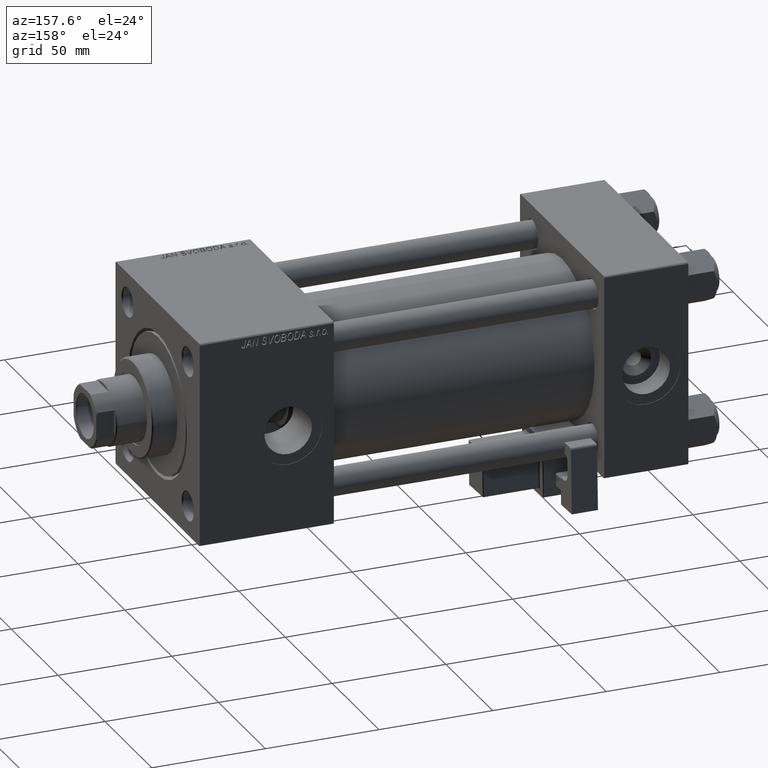
[diagram: clean part render]
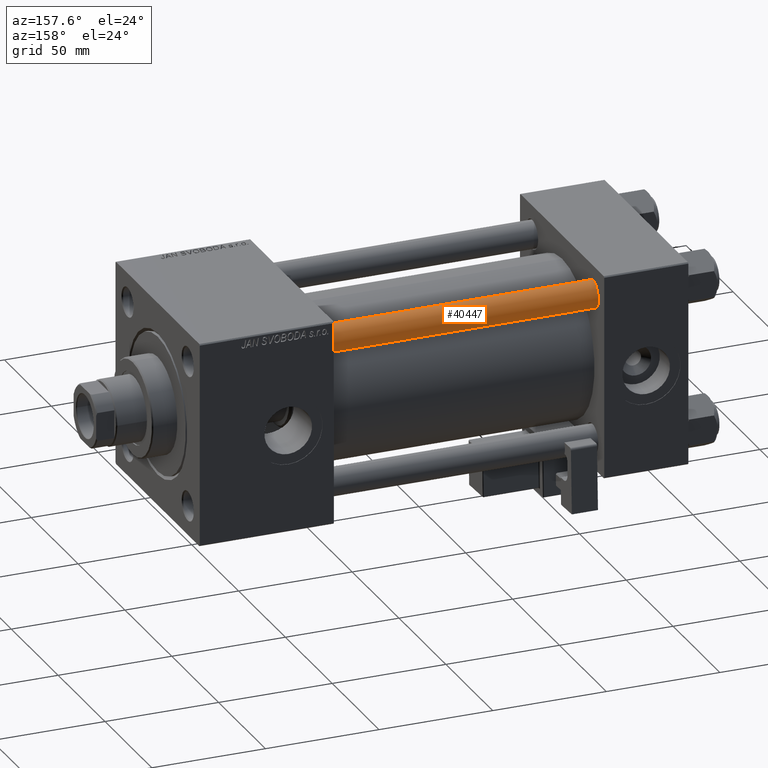
[diagram: same view with one face highlighted and labeled with its STEP entity id]
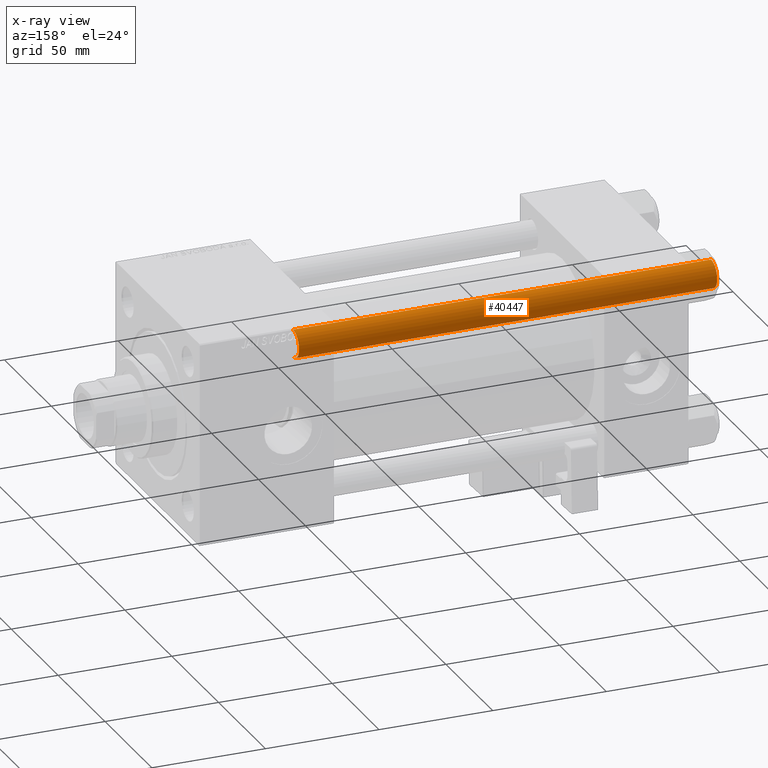
[diagram: x-ray of the same camera — body ghosted, the highlighted face saturated]
A machine part, auxiliary view. The second image highlights one B-rep face of the part: STEP entity #40447.
The next image is the same camera in x-ray: the body ghosted, the highlighted face saturated — about 0% of this face is hidden behind the body in this view.
In plain terms, the highlighted cylindrical surface (edge-blend (fillet) strip) has radius 6 mm, axis along (-1, 0, 0).
Its self-contained STEP definition (entity closure, byte-faithful):
#446 = LINE ( 'NONE', #22039, #18344 ) ;
#1942 = DIRECTION ( 'NONE',  ( -0.000000000000000000, -0.000000000000000000, -1.000000000000000000 ) ) ;
#1953 = DIRECTION ( 'NONE',  ( -0.000000000000000000, -0.000000000000000000, 1.000000000000000000 ) ) ;
#6789 = AXIS2_PLACEMENT_3D ( 'NONE', #23349, #27681, #22826 ) ;
#7485 = CARTESIAN_POINT ( 'NONE',  ( -6.000000000000000888, 0.000000000000000000, 185.0000000000000000 ) ) ;
#9788 = DIRECTION ( 'NONE',  ( 1.000000000000000000, 0.000000000000000000, 0.000000000000000000 ) ) ;
#10152 = ORIENTED_EDGE ( 'NONE', *, *, #49671, .T. ) ;
#10687 = VECTOR ( 'NONE', #35912, 1000.000000000000000 ) ;
#12291 = CARTESIAN_POINT ( 'NONE',  ( -6.000000000000000888, 0.000000000000000000, 184.5000000000000000 ) ) ;
#13685 = CIRCLE ( 'NONE', #6789, 6.000000000000000888 ) ;
#13753 = ORIENTED_EDGE ( 'NONE', *, *, #51831, .F. ) ;
#14125 = CARTESIAN_POINT ( 'NONE',  ( 0.000000000000000000, 0.000000000000000000, 0.5000000000000281997 ) ) ;
#15198 = EDGE_CURVE ( 'NONE', #35758, #15406, #13685, .T. ) ;
#15406 = VERTEX_POINT ( 'NONE', #50914 ) ;
#15437 = AXIS2_PLACEMENT_3D ( 'NONE', #14125, #1953, #9788 ) ;
#18284 = CARTESIAN_POINT ( 'NONE',  ( 6.000000000000000888, 7.347880794884120722E-16, 0.5000000000000281997 ) ) ;
#18344 = VECTOR ( 'NONE', #28877, 1000.000000000000000 ) ;
#18443 = CARTESIAN_POINT ( 'NONE',  ( 0.000000000000000000, 0.000000000000000000, 185.0000000000000000 ) ) ;
#19571 = VERTEX_POINT ( 'NONE', #18284 ) ;
#20151 = ORIENTED_EDGE ( 'NONE', *, *, #15198, .T. ) ;
#22039 = CARTESIAN_POINT ( 'NONE',  ( 6.000000000000000888, 7.347880794884120722E-16, 185.0000000000000000 ) ) ;
#22826 = DIRECTION ( 'NONE',  ( 1.000000000000000000, 0.000000000000000000, 0.000000000000000000 ) ) ;
#23349 = CARTESIAN_POINT ( 'NONE',  ( 0.000000000000000000, 0.000000000000000000, 184.5000000000000000 ) ) ;
#25758 = FACE_OUTER_BOUND ( 'NONE', #30999, .T. ) ;
#26789 = AXIS2_PLACEMENT_3D ( 'NONE', #18443, #1942, #42814 ) ;
#27681 = DIRECTION ( 'NONE',  ( 0.000000000000000000, 0.000000000000000000, -1.000000000000000000 ) ) ;
#28877 = DIRECTION ( 'NONE',  ( -0.000000000000000000, -0.000000000000000000, -1.000000000000000000 ) ) ;
#30999 = EDGE_LOOP ( 'NONE', ( #20151, #10152, #42180, #13753 ) ) ;
#34414 = CYLINDRICAL_SURFACE ( 'NONE', #26789, 6.000000000000000888 ) ;
#35356 = CIRCLE ( 'NONE', #15437, 6.000000000000000888 ) ;
#35758 = VERTEX_POINT ( 'NONE', #12291 ) ;
#35912 = DIRECTION ( 'NONE',  ( -0.000000000000000000, -0.000000000000000000, -1.000000000000000000 ) ) ;
#38991 = EDGE_CURVE ( 'NONE', #19571, #46396, #35356, .T. ) ;
#40447 = ADVANCED_FACE ( 'NONE', ( #25758 ), #34414, .T. ) ;
#42180 = ORIENTED_EDGE ( 'NONE', *, *, #38991, .T. ) ;
#42814 = DIRECTION ( 'NONE',  ( -1.000000000000000000, 0.000000000000000000, 0.000000000000000000 ) ) ;
#42976 = LINE ( 'NONE', #7485, #10687 ) ;
#44540 = CARTESIAN_POINT ( 'NONE',  ( -6.000000000000000888, 0.000000000000000000, 0.5000000000000281997 ) ) ;
#46396 = VERTEX_POINT ( 'NONE', #44540 ) ;
#49671 = EDGE_CURVE ( 'NONE', #15406, #19571, #446, .T. ) ;
#50914 = CARTESIAN_POINT ( 'NONE',  ( 6.000000000000000888, 7.347880794884120722E-16, 184.5000000000000000 ) ) ;
#51831 = EDGE_CURVE ( 'NONE', #35758, #46396, #42976, .T. ) ;